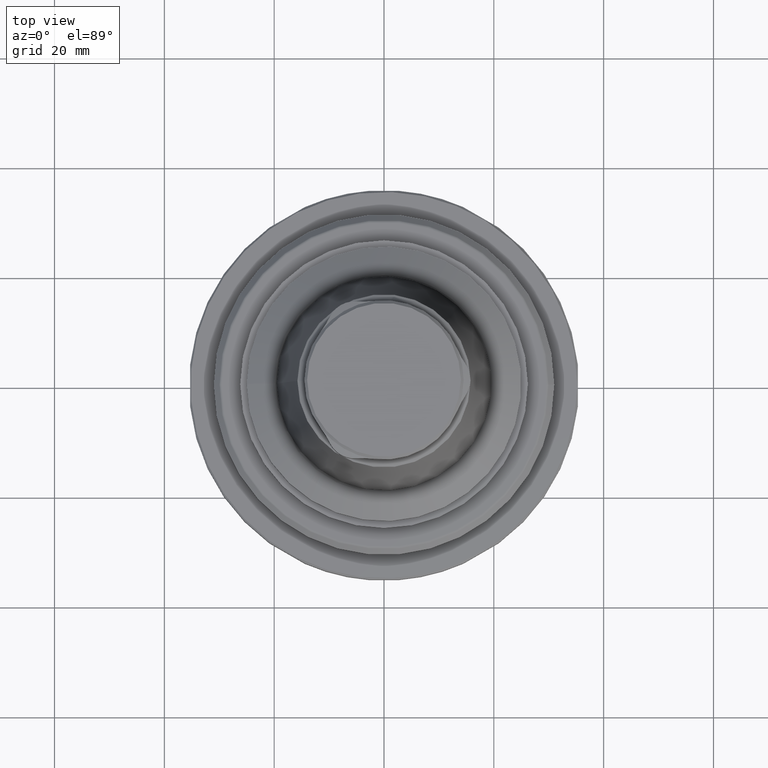
[diagram: clean part render]
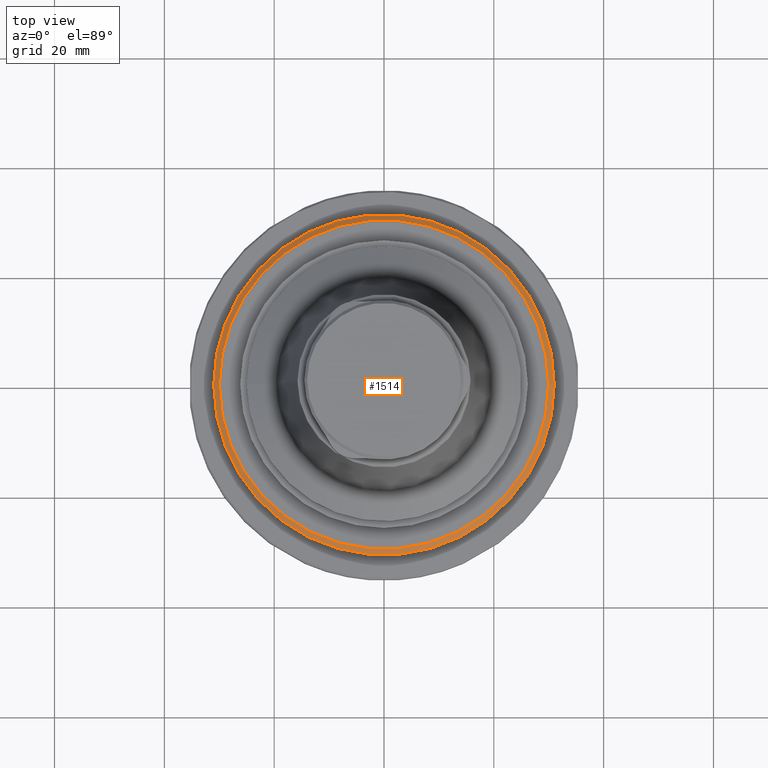
[diagram: same view with one face highlighted and labeled with its STEP entity id]
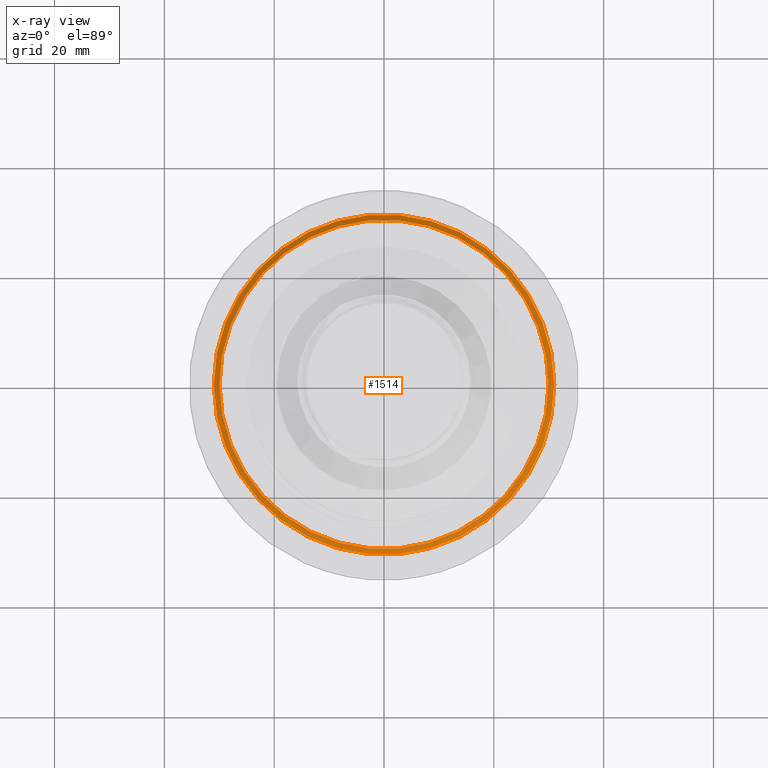
[diagram: x-ray of the same camera — body ghosted, the highlighted face saturated]
A machine part, top view. The second image highlights one B-rep face of the part: STEP entity #1514.
The next image is the same camera in x-ray: the body ghosted, the highlighted face saturated — about 0% of this face is hidden behind the body in this view.
In plain terms, the highlighted conical surface has half-angle 45 deg.
Its self-contained STEP definition (entity closure, byte-faithful):
#473=ORIENTED_EDGE('',*,*,#809,.F.);
#474=ORIENTED_EDGE('',*,*,#810,.T.);
#809=EDGE_CURVE('',#994,#994,#1115,.T.);
#810=EDGE_CURVE('',#995,#995,#1116,.T.);
#994=VERTEX_POINT('',#2520);
#995=VERTEX_POINT('',#2523);
#1115=CIRCLE('',#1666,31.);
#1116=CIRCLE('',#1668,29.9757350979542);
#1220=EDGE_LOOP('',(#473));
#1221=EDGE_LOOP('',(#474));
#1360=FACE_BOUND('',#1220,.T.);
#1361=FACE_BOUND('',#1221,.T.);
#1456=CONICAL_SURFACE('',#1667,29.9757350979542,0.785398163397448);
#1514=ADVANCED_FACE('',(#1360,#1361),#1456,.T.);
#1666=AXIS2_PLACEMENT_3D('',#2519,#1966,#1967);
#1667=AXIS2_PLACEMENT_3D('',#2521,#1968,#1969);
#1668=AXIS2_PLACEMENT_3D('',#2522,#1970,#1971);
#1966=DIRECTION('',(2.51499441280814E-17,-2.60563148754756E-18,-1.));
#1967=DIRECTION('',(1.,-1.83694883835627E-16,2.51499441280814E-17));
#1968=DIRECTION('',(2.51499441280814E-17,-2.60563148754756E-18,-1.));
#1969=DIRECTION('',(1.,-1.83694883835627E-16,2.51499441280814E-17));
#1970=DIRECTION('',(2.51499441280814E-17,-2.60563148754756E-18,-1.));
#1971=DIRECTION('',(1.,-1.83694883835627E-16,2.51499441280814E-17));
#2519=CARTESIAN_POINT('',(6.78601494669455E-15,-2.1214853050951E-15,4.29999999999999));
#2520=CARTESIAN_POINT('',(31.,-7.81602670399956E-15,4.29999999999999));
#2521=CARTESIAN_POINT('',(6.76025474163574E-15,-2.11881644821474E-15,5.32426490204583));
#2522=CARTESIAN_POINT('',(6.76025474163574E-15,-2.11881644821474E-15,5.32426490204583));
#2523=CARTESIAN_POINT('',(29.9757350979542,-7.62520562492098E-15,5.32426490204584));